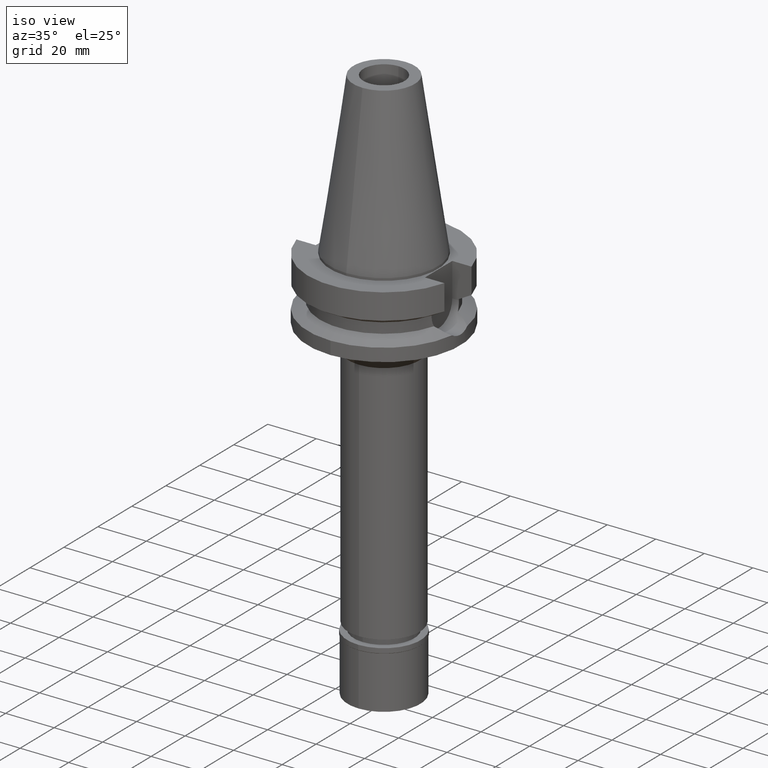
[diagram: clean part render]
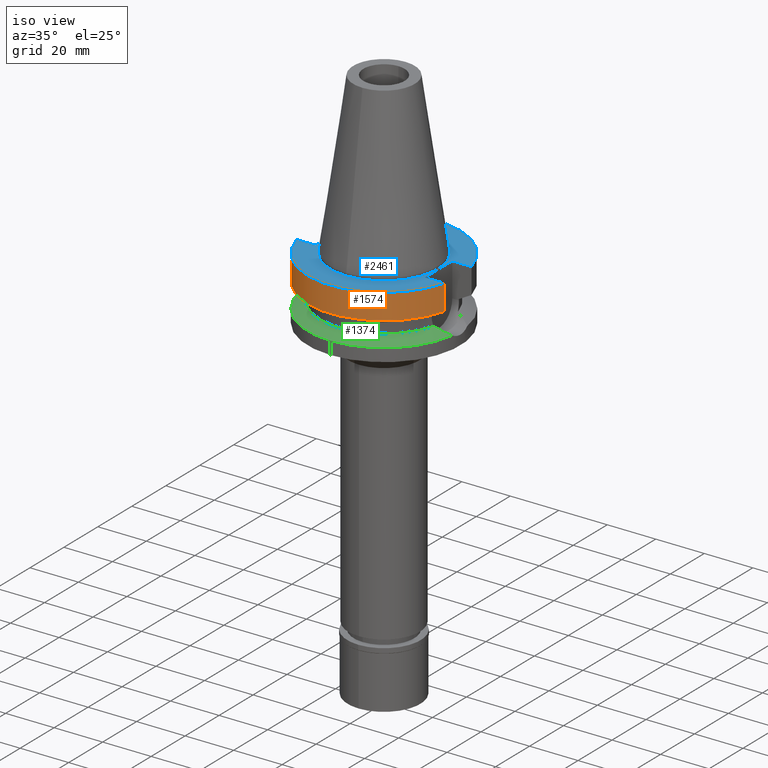
[diagram: same view with three faces highlighted in distinct colors, each labeled with its STEP entity id]
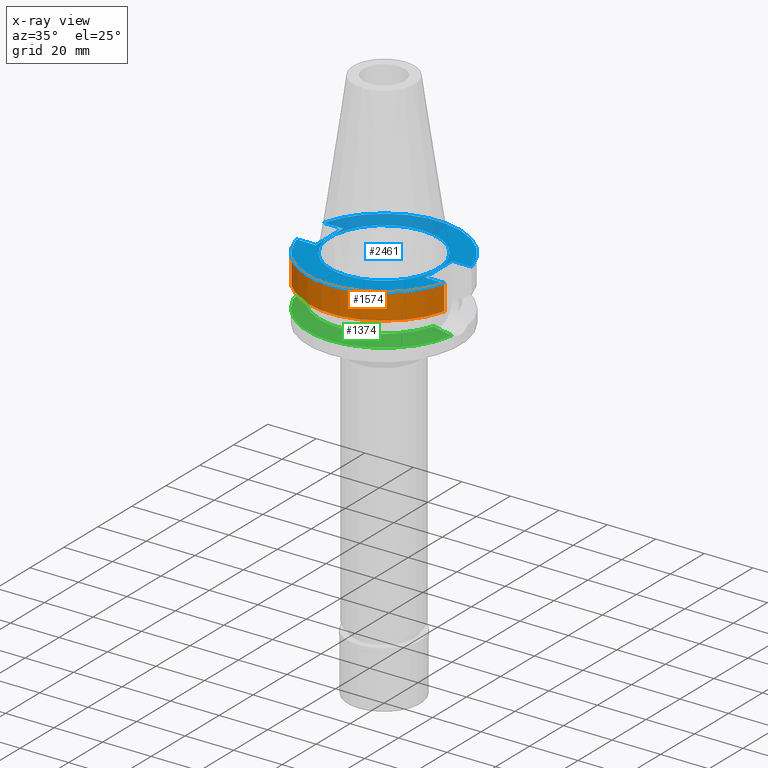
[diagram: x-ray of the same camera — body ghosted, the three highlighted faces saturated]
A machine part, iso view with three faces highlighted in distinct colors.
The next image is the same camera in x-ray (body ghosted, the three faces saturated) — at least one of them is partly hidden behind the body in this view.
Their STEP definitions:

[orange] entity #1574 — the highlighted cylindrical surface (partial cylindrical patch) has radius 31.5 mm, axis along (0, 0, -1).
#68 = DIRECTION ( 'NONE',  ( -1.036649184569017503E-07, -3.921750938789068461E-07, -0.9999999999999177325 ) ) ;
#91 = ORIENTED_EDGE ( 'NONE', *, *, #2203, .T. ) ;
#253 = DIRECTION ( 'NONE',  ( 1.805835173812990934E-08, -6.831694115686962827E-08, 0.9999999999999974465 ) ) ;
#337 = CYLINDRICAL_SURFACE ( 'NONE', #2429, 31.50000000000000000 ) ;
#395 = ORIENTED_EDGE ( 'NONE', *, *, #1435, .F. ) ;
#597 = CARTESIAN_POINT ( 'NONE',  ( 0.0000000000000000000, 0.0000000000000000000, 0.0000000000000000000 ) ) ;
#1036 = LINE ( 'NONE', #2234, #1226 ) ;
#1047 = AXIS2_PLACEMENT_3D ( 'NONE', #2925, #1206, #2158 ) ;
#1074 = CARTESIAN_POINT ( 'NONE',  ( 30.45402272279000044, -8.050000000000000711, -1.000000000000000000 ) ) ;
#1134 = DIRECTION ( 'NONE',  ( 0.0000000000000000000, 0.0000000000000000000, 1.000000000000000000 ) ) ;
#1135 = VECTOR ( 'NONE', #253, 1000.000000000000114 ) ;
#1206 = DIRECTION ( 'NONE',  ( 0.0000000000000000000, 0.0000000000000000000, -1.000000000000000000 ) ) ;
#1226 = VECTOR ( 'NONE', #68, 1000.000000000000114 ) ;
#1247 = VERTEX_POINT ( 'NONE', #1929 ) ;
#1286 = DIRECTION ( 'NONE',  ( 0.0000000000000000000, 0.0000000000000000000, -1.000000000000000000 ) ) ;
#1416 = AXIS2_PLACEMENT_3D ( 'NONE', #1551, #1134, #2524 ) ;
#1435 = EDGE_CURVE ( 'NONE', #2753, #2361, #1036, .T. ) ;
#1551 = CARTESIAN_POINT ( 'NONE',  ( 0.0000000000000000000, 0.0000000000000000000, -11.56550565266999975 ) ) ;
#1574 = ADVANCED_FACE ( 'NONE', ( #1789 ), #337, .T. ) ;
#1713 = CARTESIAN_POINT ( 'NONE',  ( 30.45402272279000044, -8.049999999999000622, -11.56550565266999975 ) ) ;
#1789 = FACE_OUTER_BOUND ( 'NONE', #1885, .T. ) ;
#1877 = ORIENTED_EDGE ( 'NONE', *, *, #3067, .T. ) ;
#1880 = ORIENTED_EDGE ( 'NONE', *, *, #2584, .F. ) ;
#1885 = EDGE_LOOP ( 'NONE', ( #1880, #91, #395, #1877 ) ) ;
#1929 = CARTESIAN_POINT ( 'NONE',  ( -30.45402272279000044, -8.050000000000000711, -1.000000000000000000 ) ) ;
#1981 = CIRCLE ( 'NONE', #1047, 31.50000000000000000 ) ;
#2029 = VERTEX_POINT ( 'NONE', #2465 ) ;
#2158 = DIRECTION ( 'NONE',  ( 0.0000000000000000000, -1.000000000000000000, 0.0000000000000000000 ) ) ;
#2203 = EDGE_CURVE ( 'NONE', #2029, #2361, #2631, .T. ) ;
#2234 = CARTESIAN_POINT ( 'NONE',  ( 30.45402272279000044, -8.050000000000000711, -1.000000000000000000 ) ) ;
#2361 = VERTEX_POINT ( 'NONE', #1713 ) ;
#2398 = LINE ( 'NONE', #2930, #1135 ) ;
#2429 = AXIS2_PLACEMENT_3D ( 'NONE', #597, #1286, #2763 ) ;
#2465 = CARTESIAN_POINT ( 'NONE',  ( -30.45402291358000113, -8.049999278195999253, -11.56551215380000031 ) ) ;
#2524 = DIRECTION ( 'NONE',  ( 0.0000000000000000000, -1.000000000000000000, 0.0000000000000000000 ) ) ;
#2584 = EDGE_CURVE ( 'NONE', #2029, #1247, #2398, .T. ) ;
#2631 = CIRCLE ( 'NONE', #1416, 31.50000000000000000 ) ;
#2753 = VERTEX_POINT ( 'NONE', #1074 ) ;
#2763 = DIRECTION ( 'NONE',  ( 0.0000000000000000000, -1.000000000000000000, 0.0000000000000000000 ) ) ;
#2925 = CARTESIAN_POINT ( 'NONE',  ( 0.0000000000000000000, 0.0000000000000000000, -1.000000000000000000 ) ) ;
#2930 = CARTESIAN_POINT ( 'NONE',  ( -30.45402291358000113, -8.049999278195999253, -11.56551215380000031 ) ) ;
#3067 = EDGE_CURVE ( 'NONE', #2753, #1247, #1981, .T. ) ;

[blue] entity #2461 — the highlighted planar face has unit normal (0, 0, -1).
#43 = ORIENTED_EDGE ( 'NONE', *, *, #1720, .F. ) ;
#51 = DIRECTION ( 'NONE',  ( 0.0000000000000000000, 0.0000000000000000000, -1.000000000000000000 ) ) ;
#67 = CIRCLE ( 'NONE', #1219, 31.50000000000000000 ) ;
#137 = ORIENTED_EDGE ( 'NONE', *, *, #2908, .F. ) ;
#179 = VECTOR ( 'NONE', #1380, 1000.000000000000000 ) ;
#201 = CARTESIAN_POINT ( 'NONE',  ( 0.0000000000000000000, 0.0000000000000000000, -1.000000000000000000 ) ) ;
#203 = CARTESIAN_POINT ( 'NONE',  ( 22.50000000000000000, -8.050000000000000711, -1.000000000000000000 ) ) ;
#258 = ORIENTED_EDGE ( 'NONE', *, *, #2296, .F. ) ;
#293 = ORIENTED_EDGE ( 'NONE', *, *, #3067, .F. ) ;
#325 = VERTEX_POINT ( 'NONE', #2182 ) ;
#329 = VECTOR ( 'NONE', #3040, 1000.000000000000000 ) ;
#383 = EDGE_CURVE ( 'NONE', #2949, #2093, #67, .T. ) ;
#402 = CARTESIAN_POINT ( 'NONE',  ( 30.45402272279000044, 8.050000000000000711, -1.000000000000000000 ) ) ;
#417 = CARTESIAN_POINT ( 'NONE',  ( 22.50000000000000000, 8.050000000000000711, -1.000000000000000000 ) ) ;
#443 = EDGE_CURVE ( 'NONE', #673, #1547, #1505, .T. ) ;
#503 = LINE ( 'NONE', #2676, #1321 ) ;
#549 = CARTESIAN_POINT ( 'NONE',  ( 0.0000000000000000000, -22.22500000000000142, -1.000000000000000000 ) ) ;
#567 = AXIS2_PLACEMENT_3D ( 'NONE', #201, #979, #2842 ) ;
#577 = ORIENTED_EDGE ( 'NONE', *, *, #383, .F. ) ;
#621 = VECTOR ( 'NONE', #1987, 1000.000000000000000 ) ;
#651 = ORIENTED_EDGE ( 'NONE', *, *, #2188, .F. ) ;
#673 = VERTEX_POINT ( 'NONE', #417 ) ;
#724 = CIRCLE ( 'NONE', #567, 22.22500000000000142 ) ;
#763 = DIRECTION ( 'NONE',  ( 0.0000000000000000000, -1.000000000000000000, 0.0000000000000000000 ) ) ;
#808 = EDGE_CURVE ( 'NONE', #1949, #3101, #724, .T. ) ;
#911 = DIRECTION ( 'NONE',  ( 1.000000000000000000, -3.506251283225999947E-14, 0.0000000000000000000 ) ) ;
#979 = DIRECTION ( 'NONE',  ( 0.0000000000000000000, 0.0000000000000000000, 1.000000000000000000 ) ) ;
#1010 = ORIENTED_EDGE ( 'NONE', *, *, #2845, .T. ) ;
#1047 = AXIS2_PLACEMENT_3D ( 'NONE', #2925, #1206, #2158 ) ;
#1074 = CARTESIAN_POINT ( 'NONE',  ( 30.45402272279000044, -8.050000000000000711, -1.000000000000000000 ) ) ;
#1104 = LINE ( 'NONE', #203, #329 ) ;
#1106 = DIRECTION ( 'NONE',  ( 1.000000000000000000, 3.550916904668000126E-14, 0.0000000000000000000 ) ) ;
#1197 = CARTESIAN_POINT ( 'NONE',  ( 0.0000000000000000000, 0.0000000000000000000, -1.000000000000000000 ) ) ;
#1206 = DIRECTION ( 'NONE',  ( 0.0000000000000000000, 0.0000000000000000000, -1.000000000000000000 ) ) ;
#1219 = AXIS2_PLACEMENT_3D ( 'NONE', #1464, #2640, #1241 ) ;
#1241 = DIRECTION ( 'NONE',  ( 0.0000000000000000000, 1.000000000000000000, 0.0000000000000000000 ) ) ;
#1247 = VERTEX_POINT ( 'NONE', #1929 ) ;
#1321 = VECTOR ( 'NONE', #2857, 1000.000000000000000 ) ;
#1365 = CIRCLE ( 'NONE', #2782, 22.22500000000000142 ) ;
#1380 = DIRECTION ( 'NONE',  ( 1.000000000000000000, -3.550916904668000126E-14, 0.0000000000000000000 ) ) ;
#1393 = EDGE_LOOP ( 'NONE', ( #43, #2921 ) ) ;
#1462 = CARTESIAN_POINT ( 'NONE',  ( 0.0000000000000000000, 22.22500000000000142, -1.000000000000000000 ) ) ;
#1464 = CARTESIAN_POINT ( 'NONE',  ( 0.0000000000000000000, 0.0000000000000000000, -1.000000000000000000 ) ) ;
#1505 = LINE ( 'NONE', #2744, #621 ) ;
#1547 = VERTEX_POINT ( 'NONE', #2747 ) ;
#1587 = CARTESIAN_POINT ( 'NONE',  ( 0.0000000000000000000, 0.0000000000000000000, -1.000000000000000000 ) ) ;
#1593 = ORIENTED_EDGE ( 'NONE', *, *, #1637, .T. ) ;
#1602 = CARTESIAN_POINT ( 'NONE',  ( -30.45402272279000044, 8.050000000000000711, -1.000000000000000000 ) ) ;
#1637 = EDGE_CURVE ( 'NONE', #2949, #1826, #2099, .T. ) ;
#1720 = EDGE_CURVE ( 'NONE', #3101, #1949, #1365, .T. ) ;
#1819 = LINE ( 'NONE', #3087, #179 ) ;
#1826 = VERTEX_POINT ( 'NONE', #2164 ) ;
#1835 = CARTESIAN_POINT ( 'NONE',  ( -30.45402272279000044, 8.050000000000000711, -1.000000000000000000 ) ) ;
#1864 = EDGE_LOOP ( 'NONE', ( #137, #293, #651, #2282, #1010, #577, #1593, #258 ) ) ;
#1925 = DIRECTION ( 'NONE',  ( 0.0000000000000000000, 0.0000000000000000000, 1.000000000000000000 ) ) ;
#1929 = CARTESIAN_POINT ( 'NONE',  ( -30.45402272279000044, -8.050000000000000711, -1.000000000000000000 ) ) ;
#1949 = VERTEX_POINT ( 'NONE', #549 ) ;
#1981 = CIRCLE ( 'NONE', #1047, 31.50000000000000000 ) ;
#1987 = DIRECTION ( 'NONE',  ( 0.0000000000000000000, -1.000000000000000000, 0.0000000000000000000 ) ) ;
#2093 = VERTEX_POINT ( 'NONE', #402 ) ;
#2099 = LINE ( 'NONE', #1602, #2180 ) ;
#2158 = DIRECTION ( 'NONE',  ( 0.0000000000000000000, -1.000000000000000000, 0.0000000000000000000 ) ) ;
#2164 = CARTESIAN_POINT ( 'NONE',  ( -22.50000000000000000, 8.050000000000000711, -1.000000000000000000 ) ) ;
#2180 = VECTOR ( 'NONE', #1106, 1000.000000000000000 ) ;
#2182 = CARTESIAN_POINT ( 'NONE',  ( -22.50000000000000000, -8.050000000000000711, -1.000000000000000000 ) ) ;
#2188 = EDGE_CURVE ( 'NONE', #1547, #2753, #1104, .T. ) ;
#2282 = ORIENTED_EDGE ( 'NONE', *, *, #443, .F. ) ;
#2296 = EDGE_CURVE ( 'NONE', #325, #1826, #503, .T. ) ;
#2437 = AXIS2_PLACEMENT_3D ( 'NONE', #1197, #51, #763 ) ;
#2452 = FACE_BOUND ( 'NONE', #1393, .T. ) ;
#2461 = ADVANCED_FACE ( 'NONE', ( #2916, #2452 ), #2901, .F. ) ;
#2640 = DIRECTION ( 'NONE',  ( 0.0000000000000000000, 0.0000000000000000000, -1.000000000000000000 ) ) ;
#2676 = CARTESIAN_POINT ( 'NONE',  ( -22.50000000000000000, -8.050000000000000711, -1.000000000000000000 ) ) ;
#2744 = CARTESIAN_POINT ( 'NONE',  ( 22.50000000000000000, 8.050000000000000711, -1.000000000000000000 ) ) ;
#2747 = CARTESIAN_POINT ( 'NONE',  ( 22.50000000000000000, -8.050000000000000711, -1.000000000000000000 ) ) ;
#2753 = VERTEX_POINT ( 'NONE', #1074 ) ;
#2782 = AXIS2_PLACEMENT_3D ( 'NONE', #1587, #1925, #2931 ) ;
#2842 = DIRECTION ( 'NONE',  ( 0.0000000000000000000, -1.000000000000000000, 0.0000000000000000000 ) ) ;
#2845 = EDGE_CURVE ( 'NONE', #673, #2093, #3070, .T. ) ;
#2857 = DIRECTION ( 'NONE',  ( 0.0000000000000000000, 1.000000000000000000, 0.0000000000000000000 ) ) ;
#2901 = PLANE ( 'NONE',  #2437 ) ;
#2908 = EDGE_CURVE ( 'NONE', #1247, #325, #1819, .T. ) ;
#2916 = FACE_OUTER_BOUND ( 'NONE', #1864, .T. ) ;
#2921 = ORIENTED_EDGE ( 'NONE', *, *, #808, .F. ) ;
#2925 = CARTESIAN_POINT ( 'NONE',  ( 0.0000000000000000000, 0.0000000000000000000, -1.000000000000000000 ) ) ;
#2931 = DIRECTION ( 'NONE',  ( 0.0000000000000000000, 1.000000000000000000, 0.0000000000000000000 ) ) ;
#2949 = VERTEX_POINT ( 'NONE', #1835 ) ;
#3021 = CARTESIAN_POINT ( 'NONE',  ( 22.50000000000000000, 8.050000000000000711, -1.000000000000000000 ) ) ;
#3040 = DIRECTION ( 'NONE',  ( 1.000000000000000000, 3.595582526110999949E-14, 0.0000000000000000000 ) ) ;
#3067 = EDGE_CURVE ( 'NONE', #2753, #1247, #1981, .T. ) ;
#3070 = LINE ( 'NONE', #3021, #3097 ) ;
#3087 = CARTESIAN_POINT ( 'NONE',  ( -30.45402272279000044, -8.050000000000000711, -1.000000000000000000 ) ) ;
#3097 = VECTOR ( 'NONE', #911, 1000.000000000000000 ) ;
#3101 = VERTEX_POINT ( 'NONE', #1462 ) ;

[green] entity #1374 — the highlighted conical surface has half-angle 60 deg.
#2 = FACE_OUTER_BOUND ( 'NONE', #489, .T. ) ;
#21 = AXIS2_PLACEMENT_3D ( 'NONE', #1484, #712, #2454 ) ;
#22 = AXIS2_PLACEMENT_3D ( 'NONE', #506, #1686, #2864 ) ;
#35 = VERTEX_POINT ( 'NONE', #422 ) ;
#162 = ORIENTED_EDGE ( 'NONE', *, *, #1146, .F. ) ;
#250 = EDGE_CURVE ( 'NONE', #1344, #2711, #2724, .T. ) ;
#289 = CARTESIAN_POINT ( 'NONE',  ( -25.53175183775000079, -7.097862220092999941, -18.74774300138999905 ) ) ;
#299 = CARTESIAN_POINT ( 'NONE',  ( 31.17899877608999759, -4.485536235554000051, -21.63449434733000132 ) ) ;
#354 = CARTESIAN_POINT ( 'NONE',  ( 27.74305006521771944, -6.364871537124066947, -19.88115769379454534 ) ) ;
#422 = CARTESIAN_POINT ( 'NONE',  ( -31.17899877608999759, -4.485536235554000051, -21.63449434733000132 ) ) ;
#423 = CARTESIAN_POINT ( 'NONE',  ( -29.78685640073588559, -5.397256883601027511, -20.92496930415191869 ) ) ;
#437 = CARTESIAN_POINT ( 'NONE',  ( -29.03097981403747596, -5.794724296709810929, -20.53897768735079055 ) ) ;
#453 = CARTESIAN_POINT ( 'NONE',  ( -28.62727954565016475, -5.985698460257225406, -20.33274496905597672 ) ) ;
#489 = EDGE_LOOP ( 'NONE', ( #2600, #1011, #162, #3084, #2775 ) ) ;
#490 = DIRECTION ( 'NONE',  ( 0.0000000000000000000, 0.0000000000000000000, 1.000000000000000000 ) ) ;
#506 = CARTESIAN_POINT ( 'NONE',  ( 0.0000000000000000000, 0.0000000000000000000, -21.63449434733000132 ) ) ;
#580 = CARTESIAN_POINT ( 'NONE',  ( 25.53175183775000079, -7.097862220092999941, -18.74774300138999905 ) ) ;
#588 = CARTESIAN_POINT ( 'NONE',  ( 26.13689465944166912, -6.931518827951918205, -19.05863356933865660 ) ) ;
#664 = CARTESIAN_POINT ( 'NONE',  ( 28.10721872750122685, -6.214729930066690500, -20.06722418578896949 ) ) ;
#686 = CARTESIAN_POINT ( 'NONE',  ( 25.53175183775000079, -7.097862220092999941, -18.74774300138999905 ) ) ;
#712 = DIRECTION ( 'NONE',  ( 0.0000000000000000000, 0.0000000000000000000, -1.000000000000000000 ) ) ;
#752 = CARTESIAN_POINT ( 'NONE',  ( 28.65637537678534841, -5.972222963287681097, -20.34769818061802837 ) ) ;
#829 = B_SPLINE_CURVE_WITH_KNOTS ( 'NONE', 3,
 ( #1874, #884, #3024, #423, #1622, #2591, #437, #1384, #2352, #2847, #453, #2046, #2066, #864, #3045, #1823 ),
 .UNSPECIFIED., .F., .F.,
 ( 4, 2, 2, 1, 1, 1, 1, 2, 2, 4 ),
 ( 0.0000000000000000000, 0.2500000000000106026, 0.3750000000000168199, 0.4375000000000199840, 0.4687500000000207057, 0.4843750000000201505, 0.4921875000000195954, 0.4960937500000187073, 0.5000000000000177636, 1.000000000000000000 ),
 .UNSPECIFIED. ) ;
#864 = CARTESIAN_POINT ( 'NONE',  ( -27.72554988811673837, -6.397739216251981276, -19.87209684960093270 ) ) ;
#884 = CARTESIAN_POINT ( 'NONE',  ( -30.82498537334093669, -4.754115104431203775, -21.45426826202986703 ) ) ;
#898 = CARTESIAN_POINT ( 'NONE',  ( 0.0000000000000000000, -31.50000000000000000, -21.63449434733000132 ) ) ;
#932 = CIRCLE ( 'NONE', #22, 31.50000000000001421 ) ;
#1003 = CARTESIAN_POINT ( 'NONE',  ( 0.0000000000000000000, 0.0000000000000000000, -18.74774300138999905 ) ) ;
#1006 = CARTESIAN_POINT ( 'NONE',  ( 30.49156527663958371, -5.007070477692016297, -21.28452610446596793 ) ) ;
#1011 = ORIENTED_EDGE ( 'NONE', *, *, #1739, .F. ) ;
#1020 = CARTESIAN_POINT ( 'NONE',  ( 28.62836362508425125, -5.985122551679245895, -20.33339120013104306 ) ) ;
#1146 = EDGE_CURVE ( 'NONE', #2711, #1961, #1821, .T. ) ;
#1156 = CARTESIAN_POINT ( 'NONE',  ( 28.28556603972691263, -6.138941366272839595, -20.15832000900190479 ) ) ;
#1225 = DIRECTION ( 'NONE',  ( 0.0000000000000000000, -1.000000000000000000, 0.0000000000000000000 ) ) ;
#1278 = CIRCLE ( 'NONE', #2635, 31.50000000000000000 ) ;
#1305 = CARTESIAN_POINT ( 'NONE',  ( 28.48709812088715410, -6.049448232255228319, -20.26124336245188928 ) ) ;
#1344 = VERTEX_POINT ( 'NONE', #289 ) ;
#1374 = ADVANCED_FACE ( 'NONE', ( #2 ), #2574, .T. ) ;
#1384 = CARTESIAN_POINT ( 'NONE',  ( -28.81539899028852147, -5.898135955145136222, -20.42884739519783466 ) ) ;
#1484 = CARTESIAN_POINT ( 'NONE',  ( 0.0000000000000000000, 0.0000000000000000000, -20.19111867435999841 ) ) ;
#1532 = CARTESIAN_POINT ( 'NONE',  ( 26.70217594602876332, -6.750108701074460704, -19.34857574036092132 ) ) ;
#1622 = CARTESIAN_POINT ( 'NONE',  ( -29.56200736631998538, -5.521762389461058795, -20.81018774783185776 ) ) ;
#1686 = DIRECTION ( 'NONE',  ( 0.0000000000000000000, 0.0000000000000000000, -1.000000000000000000 ) ) ;
#1692 = EDGE_CURVE ( 'NONE', #35, #1344, #829, .T. ) ;
#1739 = EDGE_CURVE ( 'NONE', #1961, #2176, #932, .T. ) ;
#1821 = B_SPLINE_CURVE_WITH_KNOTS ( 'NONE', 3,
 ( #686, #588, #1532, #2818, #354, #664, #1156, #1305, #2030, #1020, #752, #2151, #1958, #1006, #2415 ),
 .UNSPECIFIED., .F., .F.,
 ( 4, 2, 2, 1, 1, 1, 2, 2, 4 ),
 ( 0.0000000000000000000, 0.2500000000000202616, 0.3750000000000306977, 0.4375000000000359157, 0.4687500000000385247, 0.4843750000000409117, 0.4921875000000412448, 0.5000000000000415223, 1.000000000000000000 ),
 .UNSPECIFIED. ) ;
#1823 = CARTESIAN_POINT ( 'NONE',  ( -25.53175183775000079, -7.097862220092999941, -18.74774300138999905 ) ) ;
#1874 = CARTESIAN_POINT ( 'NONE',  ( -31.17899877608999759, -4.485536235554000051, -21.63449434733000132 ) ) ;
#1941 = DIRECTION ( 'NONE',  ( 0.0000000000000000000, -1.000000000000000000, 0.0000000000000000000 ) ) ;
#1958 = CARTESIAN_POINT ( 'NONE',  ( 29.65998913349135435, -5.506713652433509409, -20.86031443575743438 ) ) ;
#1961 = VERTEX_POINT ( 'NONE', #299 ) ;
#2030 = CARTESIAN_POINT ( 'NONE',  ( 28.58622921569147834, -6.004455527739297693, -20.31187148009994559 ) ) ;
#2046 = CARTESIAN_POINT ( 'NONE',  ( -28.61146977033280336, -5.992951518284984402, -20.32466850684847870 ) ) ;
#2066 = CARTESIAN_POINT ( 'NONE',  ( -28.60242947860376006, -5.997089447744253121, -20.32005026607100362 ) ) ;
#2151 = CARTESIAN_POINT ( 'NONE',  ( 28.66902474060083605, -5.966378870527261569, -20.35415893740938742 ) ) ;
#2176 = VERTEX_POINT ( 'NONE', #898 ) ;
#2352 = CARTESIAN_POINT ( 'NONE',  ( -28.70603875186110798, -5.949337341077149510, -20.37297958997316982 ) ) ;
#2415 = CARTESIAN_POINT ( 'NONE',  ( 31.17899877608999759, -4.485536235554000051, -21.63449434733000132 ) ) ;
#2454 = DIRECTION ( 'NONE',  ( 0.0000000000000000000, -1.000000000000000000, 0.0000000000000000000 ) ) ;
#2511 = EDGE_CURVE ( 'NONE', #2176, #35, #1278, .T. ) ;
#2574 = CONICAL_SURFACE ( 'NONE', #21, 29.00000000000000000, 1.047197551196400456 ) ;
#2591 = CARTESIAN_POINT ( 'NONE',  ( -29.21038111478371135, -5.704420584207255729, -20.63061404073968674 ) ) ;
#2600 = ORIENTED_EDGE ( 'NONE', *, *, #2511, .F. ) ;
#2616 = DIRECTION ( 'NONE',  ( 0.0000000000000000000, 0.0000000000000000000, -1.000000000000000000 ) ) ;
#2635 = AXIS2_PLACEMENT_3D ( 'NONE', #2672, #2616, #1225 ) ;
#2672 = CARTESIAN_POINT ( 'NONE',  ( 0.0000000000000000000, 0.0000000000000000000, -21.63449434733000132 ) ) ;
#2711 = VERTEX_POINT ( 'NONE', #580 ) ;
#2724 = CIRCLE ( 'NONE', #2783, 26.50000000000000000 ) ;
#2775 = ORIENTED_EDGE ( 'NONE', *, *, #1692, .F. ) ;
#2783 = AXIS2_PLACEMENT_3D ( 'NONE', #1003, #490, #1941 ) ;
#2818 = CARTESIAN_POINT ( 'NONE',  ( 27.49030557325258428, -6.463054227756946268, -19.75194377872922047 ) ) ;
#2847 = CARTESIAN_POINT ( 'NONE',  ( -28.65096617600918805, -5.974809570868998776, -20.34484537439867324 ) ) ;
#2864 = DIRECTION ( 'NONE',  ( 0.9898094849552905306, -0.1423979757318985240, 0.0000000000000000000 ) ) ;
#3024 = CARTESIAN_POINT ( 'NONE',  ( -30.43269810415878496, -5.016862600548094520, -21.25445476308356163 ) ) ;
#3045 = CARTESIAN_POINT ( 'NONE',  ( -26.70425651323393268, -6.775560776484000236, -19.35011426222079578 ) ) ;
#3084 = ORIENTED_EDGE ( 'NONE', *, *, #250, .F. ) ;